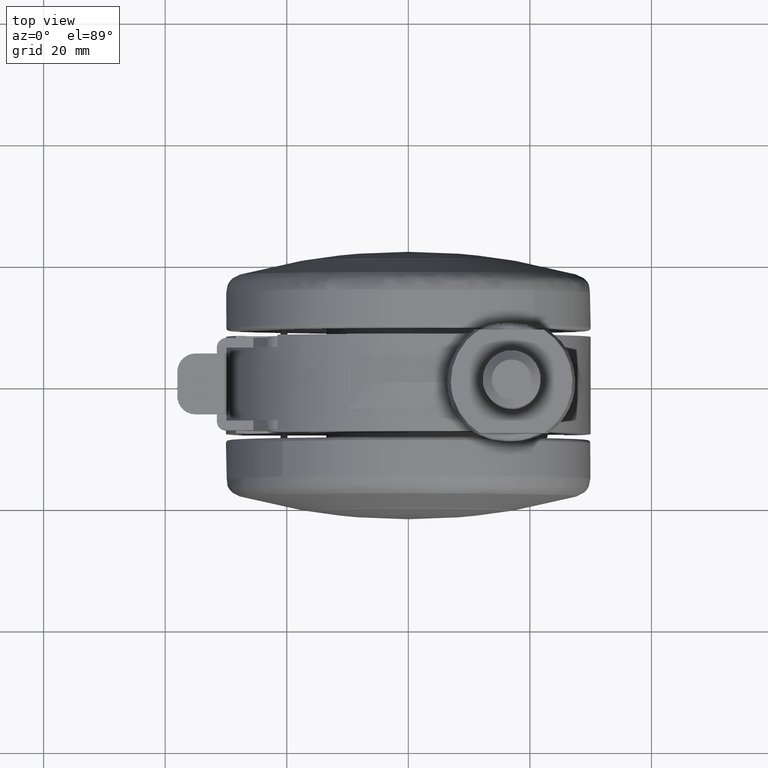
[diagram: clean part render]
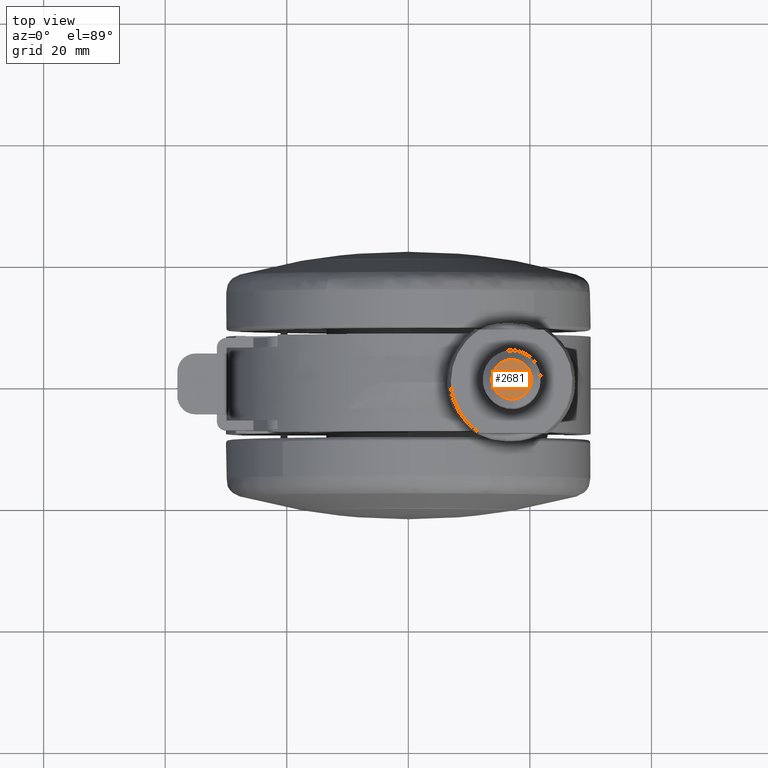
[diagram: same view with one face highlighted and labeled with its STEP entity id]
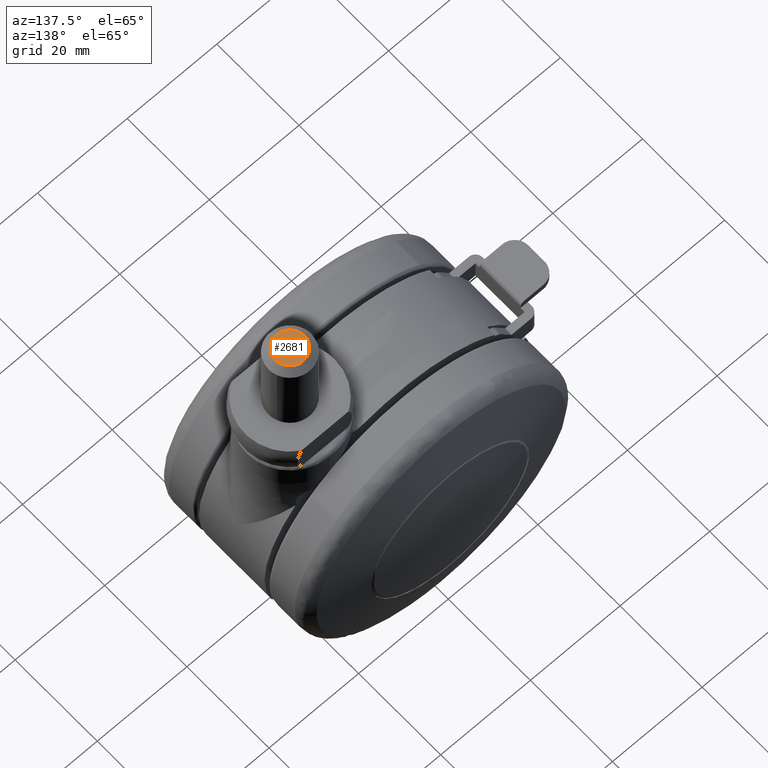
[diagram: same view with one face highlighted and labeled with its STEP entity id]
A machine part, top view. The second image highlights one B-rep face of the part: STEP entity #2681.
A second angle (auxiliary view) of the same face is appended — the face is thin or edge-on in the first view.
In plain terms, the highlighted face is a freeform B-spline surface patch.
Its self-contained STEP definition (entity closure, byte-faithful):
#1740=CARTESIAN_POINT('',(16.614913309422342,3.239693579761532,58.999999999998749));
#1741=VERTEX_POINT('',#1740);
#1747=CARTESIAN_POINT('',(20.262499999999999,0.0,59.0));
#1748=VERTEX_POINT('',#1747);
#1749=CARTESIAN_POINT('',(16.614913309422342,3.239693579761531,58.999999999998749));
#1750=CARTESIAN_POINT('',(16.806781309625702,3.262500000000001,59.0));
#1751=CARTESIAN_POINT('',(17.0,3.262500000000000,59.0));
#1752=CARTESIAN_POINT('',(20.262500000000003,3.262500000000000,58.999999999999986));
#1753=CARTESIAN_POINT('',(20.262499999999999,0.0,59.0));
#1761=(BOUNDED_CURVE()B_SPLINE_CURVE(2,(#1749,#1750,#1751,#1752,#1753),.UNSPECIFIED.,.F.,.U.)B_SPLINE_CURVE_WITH_KNOTS((3,2,3),(0.229562473514618,0.250000000000000,0.500000000000000),.UNSPECIFIED.)CURVE()GEOMETRIC_REPRESENTATION_ITEM()RATIONAL_B_SPLINE_CURVE((0.956026754185873,0.976055948332445,1.0,0.707106781186547,1.0))REPRESENTATION_ITEM(''));
#1762=EDGE_CURVE('',#1741,#1748,#1761,.T.);
#1764=CARTESIAN_POINT('',(17.199170860485609,-3.256414779868958,58.999999999966960));
#1765=VERTEX_POINT('',#1764);
#1766=CARTESIAN_POINT('',(20.262499999999999,0.0,59.0));
#1767=CARTESIAN_POINT('',(20.262500000000006,-3.069053542805581,59.0));
#1768=CARTESIAN_POINT('',(17.199170860485616,-3.256414779868958,58.999999999966960));
#1776=(BOUNDED_CURVE()B_SPLINE_CURVE(2,(#1766,#1767,#1768),.UNSPECIFIED.,.F.,.U.)B_SPLINE_CURVE_WITH_KNOTS((3,3),(0.500000000000000,0.739332962215355),.UNSPECIFIED.)CURVE()GEOMETRIC_REPRESENTATION_ITEM()RATIONAL_B_SPLINE_CURVE((1.0,0.719603993314345,0.976072041616165))REPRESENTATION_ITEM(''));
#1777=EDGE_CURVE('',#1748,#1765,#1776,.T.);
#1810=CARTESIAN_POINT('',(13.737500000000001,0.0,59.0));
#1811=VERTEX_POINT('',#1810);
#1812=CARTESIAN_POINT('',(17.199170860485616,-3.256414779868959,58.999999999966960));
#1813=CARTESIAN_POINT('',(17.099678390513471,-3.262500000000000,59.000000000000007));
#1814=CARTESIAN_POINT('',(17.0,-3.262500000000000,59.0));
#1815=CARTESIAN_POINT('',(13.737500000000001,-3.262500000000000,58.999999999999986));
#1816=CARTESIAN_POINT('',(13.737500000000001,0.0,59.0));
#1824=(BOUNDED_CURVE()B_SPLINE_CURVE(2,(#1812,#1813,#1814,#1815,#1816),.UNSPECIFIED.,.F.,.U.)B_SPLINE_CURVE_WITH_KNOTS((3,2,3),(0.739332962215356,0.750000000000000,1.0),.UNSPECIFIED.)CURVE()GEOMETRIC_REPRESENTATION_ITEM()RATIONAL_B_SPLINE_CURVE((0.976072041616166,0.987502787872203,1.0,0.707106781186547,1.0))REPRESENTATION_ITEM(''));
#1825=EDGE_CURVE('',#1765,#1811,#1824,.T.);
#1827=CARTESIAN_POINT('',(13.737500000000001,0.0,59.0));
#1828=CARTESIAN_POINT('',(13.737500000000001,2.897669390898609,58.999999999999986));
#1829=CARTESIAN_POINT('',(16.614913309422334,3.239693579761532,58.999999999998757));
#1837=(BOUNDED_CURVE()B_SPLINE_CURVE(2,(#1827,#1828,#1829),.UNSPECIFIED.,.F.,.U.)B_SPLINE_CURVE_WITH_KNOTS((3,3),(0.0,0.229562473514618),.UNSPECIFIED.)CURVE()GEOMETRIC_REPRESENTATION_ITEM()RATIONAL_B_SPLINE_CURVE((1.0,0.731050832854103,0.956026754185873))REPRESENTATION_ITEM(''));
#1838=EDGE_CURVE('',#1811,#1741,#1837,.T.);
#2670=CARTESIAN_POINT('',(13.411576423090930,-3.588344269750839,59.0));
#2671=CARTESIAN_POINT('',(20.588424393641720,-3.588344269750839,59.0));
#2672=CARTESIAN_POINT('',(13.411576423090930,3.588364396376734,59.0));
#2673=CARTESIAN_POINT('',(20.588424393641720,3.588364396376734,59.0));
#2674=B_SPLINE_SURFACE_WITH_KNOTS('',1,1,((#2670,#2672),(#2671,#2673)),.UNSPECIFIED.,.F.,.F.,.U.,(2,2),(2,2),(0.0,7.176847970550792),(0.0,7.176708666127572),.UNSPECIFIED.);
#2675=ORIENTED_EDGE('',*,*,#1825,.F.);
#2676=ORIENTED_EDGE('',*,*,#1777,.F.);
#2677=ORIENTED_EDGE('',*,*,#1762,.F.);
#2678=ORIENTED_EDGE('',*,*,#1838,.F.);
#2679=EDGE_LOOP('',(#2675,#2676,#2677,#2678));
#2680=FACE_OUTER_BOUND('',#2679,.T.);
#2681=ADVANCED_FACE('',(#2680),#2674,.T.);